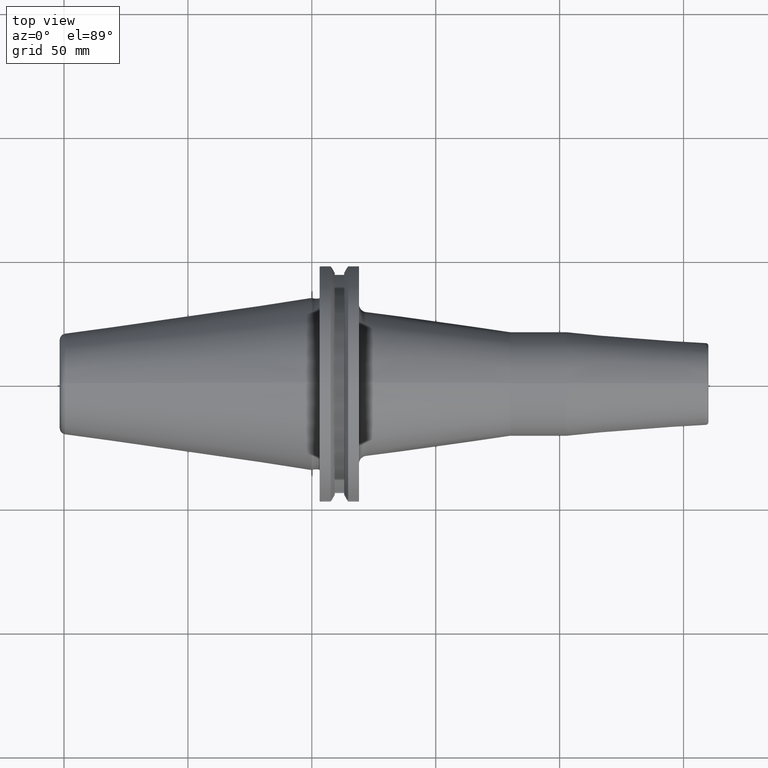
[diagram: clean part render]
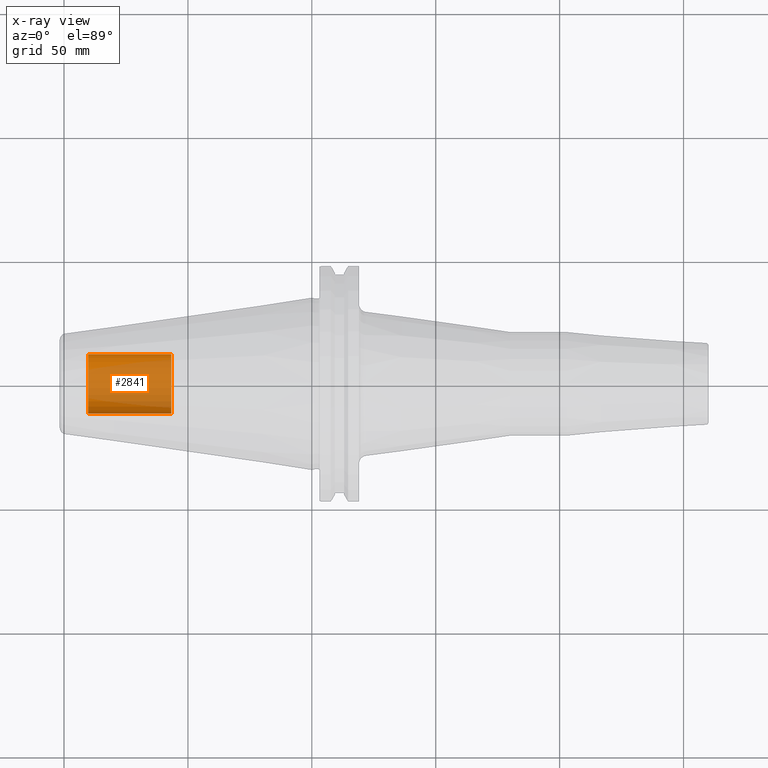
[diagram: x-ray — body ghosted, one internal face saturated and labeled with its STEP entity id]
A machine part, top view, then the same camera in x-ray: the body is ghosted and one INTERNAL B-rep face — a face not visible from any outside direction — is saturated and labeled: STEP entity #2841.
In plain terms, the highlighted cylindrical surface (edge-blend (fillet) strip) has radius 12 mm, axis along (-1, 0, 0).
Its self-contained STEP definition (entity closure, byte-faithful):
#2776=CARTESIAN_POINT('',(-9.025E1,0.E0,0.E0));
#2777=DIRECTION('',(1.E0,0.E0,0.E0));
#2778=DIRECTION('',(0.E0,-1.E0,0.E0));
#2779=AXIS2_PLACEMENT_3D('',#2776,#2777,#2778);
#2786=DIRECTION('',(1.E0,0.E0,0.E0));
#2787=VECTOR('',#2786,3.35E1);
#2788=CARTESIAN_POINT('',(-9.025E1,-1.2E1,0.E0));
#2789=LINE('',#2788,#2787);
#2790=DIRECTION('',(1.E0,0.E0,0.E0));
#2791=VECTOR('',#2790,3.35E1);
#2792=CARTESIAN_POINT('',(-9.025E1,1.2E1,0.E0));
#2793=LINE('',#2792,#2791);
#2799=CARTESIAN_POINT('',(-5.675E1,0.E0,0.E0));
#2800=DIRECTION('',(-1.E0,0.E0,0.E0));
#2801=DIRECTION('',(0.E0,1.E0,0.E0));
#2802=AXIS2_PLACEMENT_3D('',#2799,#2800,#2801);
#2814=CARTESIAN_POINT('',(-5.675E1,1.2E1,0.E0));
#2815=CARTESIAN_POINT('',(-5.675E1,-1.2E1,0.E0));
#2816=VERTEX_POINT('',#2814);
#2817=VERTEX_POINT('',#2815);
#2818=CARTESIAN_POINT('',(-9.025E1,1.2E1,0.E0));
#2819=CARTESIAN_POINT('',(-9.025E1,-1.2E1,0.E0));
#2820=VERTEX_POINT('',#2818);
#2821=VERTEX_POINT('',#2819);
#2826=CARTESIAN_POINT('',(-2.162551167522E1,0.E0,0.E0));
#2827=DIRECTION('',(-1.E0,0.E0,0.E0));
#2828=DIRECTION('',(0.E0,1.E0,0.E0));
#2829=AXIS2_PLACEMENT_3D('',#2826,#2827,#2828);
#2830=CYLINDRICAL_SURFACE('',#2829,1.2E1);
#2832=ORIENTED_EDGE('',*,*,#2831,.T.);
#2834=ORIENTED_EDGE('',*,*,#2833,.T.);
#2836=ORIENTED_EDGE('',*,*,#2835,.T.);
#2838=ORIENTED_EDGE('',*,*,#2837,.F.);
#2839=EDGE_LOOP('',(#2832,#2834,#2836,#2838));
#2840=FACE_OUTER_BOUND('',#2839,.F.);
#2841=ADVANCED_FACE('',(#2840),#2830,.F.);
#2780=CIRCLE('',#2779,1.2E1);
#2803=CIRCLE('',#2802,1.2E1);
#2831=EDGE_CURVE('',#2821,#2820,#2780,.T.);
#2833=EDGE_CURVE('',#2820,#2816,#2793,.T.);
#2835=EDGE_CURVE('',#2816,#2817,#2803,.T.);
#2837=EDGE_CURVE('',#2821,#2817,#2789,.T.);